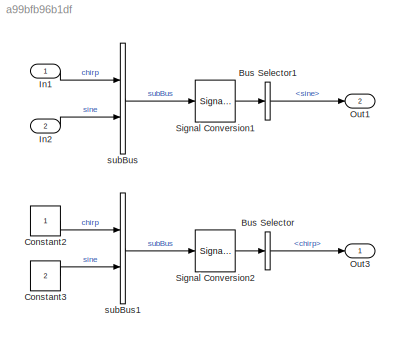
MODEL slx_a99bfb96b1df
KIND model
CONFIG AbsTol = auto
CONFIG EnableMultiTasking = on
CONFIG FixedStep = 1.000000
CONFIG MaxStep = auto
CONFIG MinStep = auto
CONFIG PreLoadFcn = % Bus object: subBus \nclear elems;\nelems(1) = Simulink.BusElement;\nelems(1).Name = 'chirp';\nelems(1).Dimensions = 1;\nelems(1).DimensionsMode = 'Fixed';\nelems(1).DataType = 'double';\nelems(1).SampleTime = -1;\nelems(1).Complexity = 'real';\nelems(1).Min = [];\nelems(1).Max = [];\nelems(1).DocUnits = '';\nelems(1).Description = '';\n\nelems(2) = Simulink.BusElement;\nelems(2).Name = 'sine';\nelems(2).Dimensi...<+414ch>
CONFIG RelTol = 1e-3
CONFIG SampleTimeConstraint = Unconstrained
CONFIG Solver = FixedStepAuto
CONFIG SolverName = FixedStepAuto
CONFIG StartTime = 0.0
CONFIG StopTime = 10.0
BLOCK [BusSelector] Bus Selector
  OutputAsBus = off
  OutputSignals = chirp
  Ports = [1, 1]
BLOCK [BusSelector] Bus Selector1
  OutputAsBus = off
  OutputSignals = sine
  Ports = [1, 1]
BLOCK [Constant] Constant2
BLOCK [Constant] Constant3
  Value = 2
BLOCK [Inport] In1
  IconDisplay = Port number
  OutDataTypeStr = double
  PortDimensions = 1
BLOCK [Inport] In2
  IconDisplay = Port number
  OutDataTypeStr = double
  Port = 2
  PortDimensions = 1
BLOCK [Outport] Out1
  IconDisplay = Port number
  Port = 2
BLOCK [Outport] Out3
  IconDisplay = Port number
BLOCK [SignalConversion] Signal Conversion1
  ConversionOutput = Nonvirtual bus
  OutDataTypeStr = Bus: subBus
  OverrideOpt = off
BLOCK [SignalConversion] Signal Conversion2
  ConversionOutput = Nonvirtual bus
  OutDataTypeStr = Bus: subBus
  OverrideOpt = off
BLOCK [BusCreator] subBus
  DisplayOption = bar
  InheritFromInputs = on
  Inputs = 2
  Ports = [2, 1]
BLOCK [BusCreator] subBus1
  DisplayOption = bar
  InheritFromInputs = on
  Inputs = 2
  NonVirtualBus = on
  OutDataTypeStr = Bus: subBus
  Ports = [2, 1]
LINE Bus Selector1:1 -> Out1:1
LINE Bus Selector:1 -> Out3:1
LINE Constant2:1 -> subBus1:1
LINE Constant3:1 -> subBus1:2
LINE In1:1 -> subBus:1
LINE In2:1 -> subBus:2
LINE Signal Conversion1:1 -> Bus Selector1:1
LINE Signal Conversion2:1 -> Bus Selector:1
LINE subBus1:1 -> Signal Conversion2:1
LINE subBus:1 -> Signal Conversion1:1
